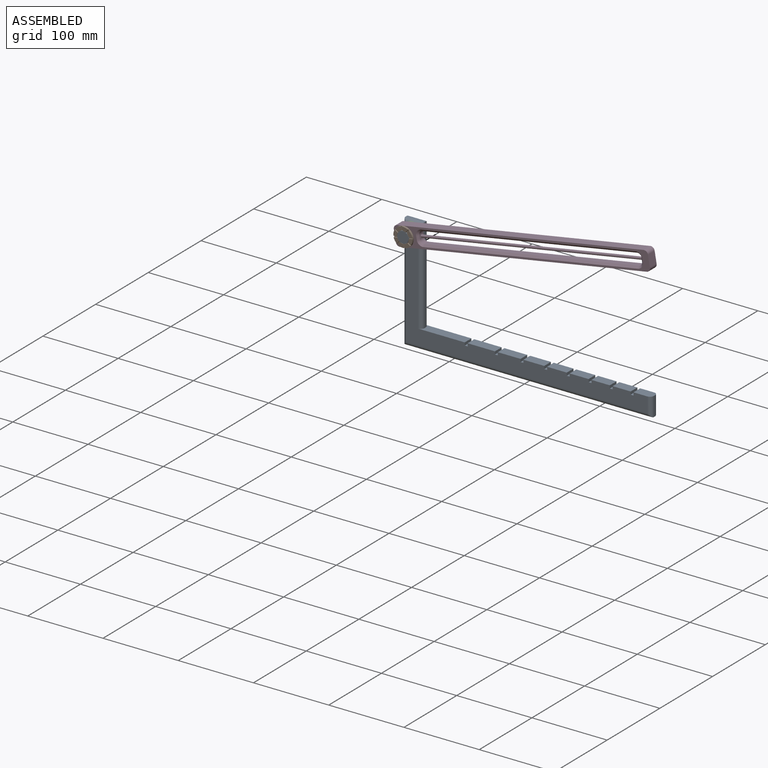
[diagram: assembled view]
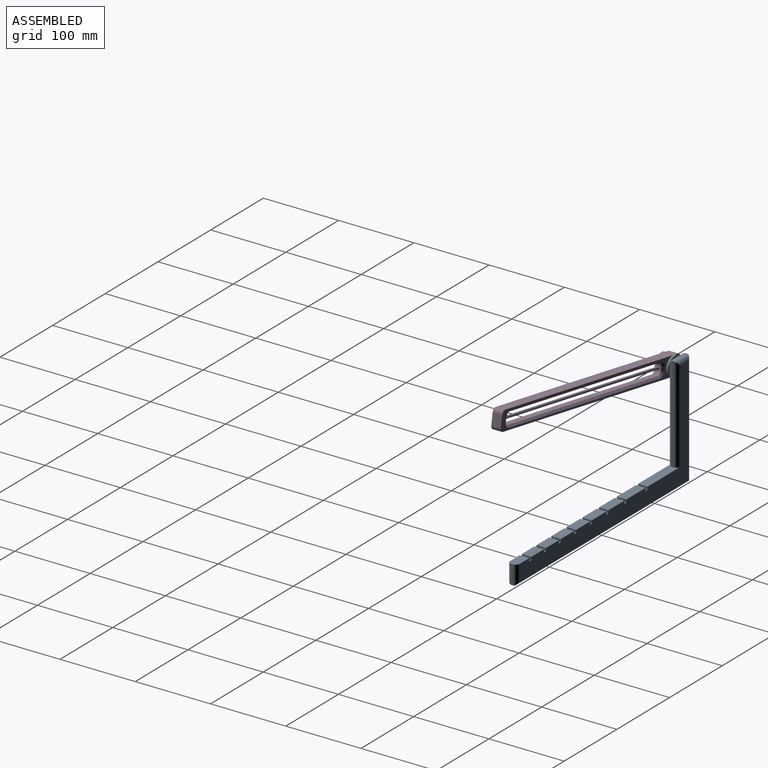
[diagram: assembled view, second angle]
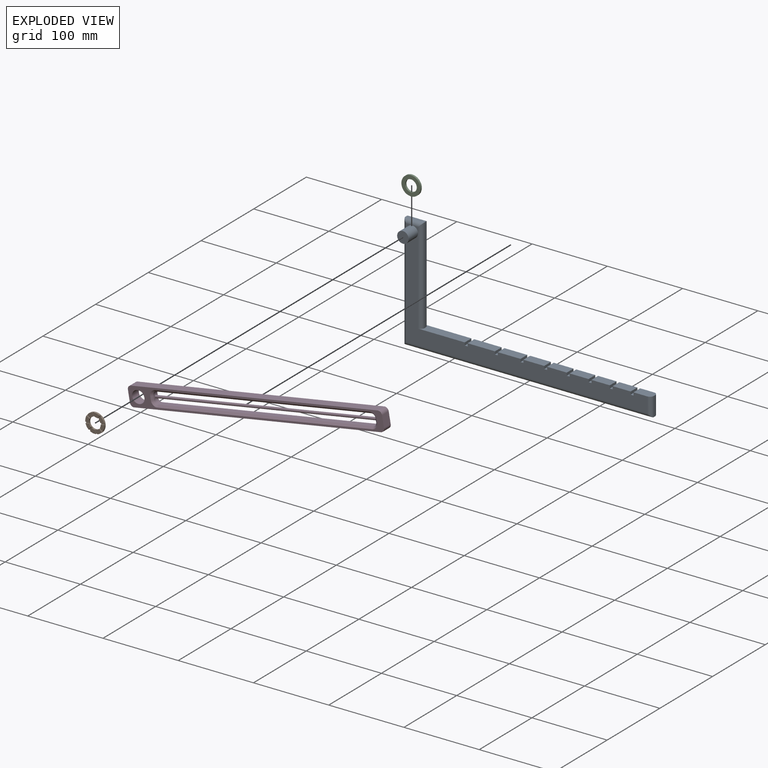
[diagram: exploded view]
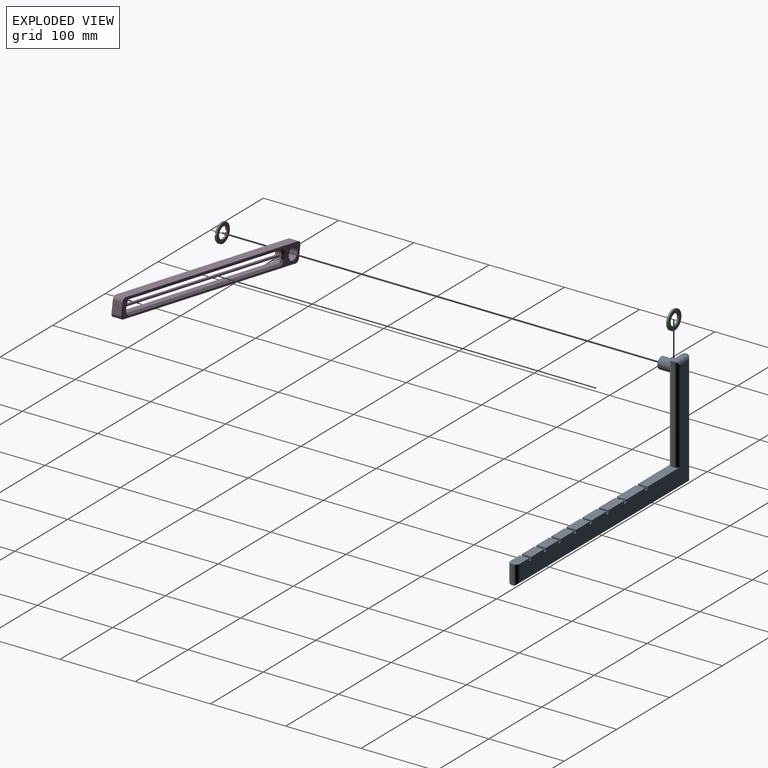
[diagram: exploded view, second angle]
ASSEMBLY  parts=4 mates=3
PART A: 54 faces, bbox 330.2x30.5x152.4 mm
  f0: plane 320.04x134.62mm, normal (0,-1,0), area 8037.8mm2, adj f2,f3,f4,f5,f6,f7,f8,f9
  f1: plane 7.62x7.62mm, normal (0,-1,0), area 12.5mm2, adj f18,f52,f53
  f2: plane 62.1x12.7mm, normal (0,0,1), area 735.3mm2, adj f0,f11,f13,f43,f48,f53
  f3: plane 36.32x12.7mm, normal (0,0,1), area 461.3mm2, adj f0,f11,f39,f42
  f4: plane 30.23x12.7mm, normal (0,0,1), area 383.9mm2, adj f0,f11,f37,f40
  f5: plane 27.69x12.7mm, normal (0,0,1), area 351.6mm2, adj f0,f11,f34,f36
  f6: plane 26.16x12.7mm, normal (0,0,1), area 332.3mm2, adj f0,f11,f31,f33
  f7: plane 25.15x12.7mm, normal (0,0,1), area 319.4mm2, adj f0,f11,f28,f30
  f8: plane 24.38x12.7mm, normal (0,0,1), area 309.7mm2, adj f0,f11,f25,f27
  f9: plane 23.88x12.7mm, normal (0,0,1), area 303.2mm2, adj f0,f11,f22,f24
  f10: plane 7.62x7.62mm, normal (0,-1,0), area 12.5mm2, adj f18,f51,f52
  f11: plane 320.04x142.24mm, normal (0,1,0), area 8245.1mm2, adj f2,f3,f4,f5,f6,f7,f8,f9
  f12: plane 23.5x12.7mm, normal (0,0,1), area 287.3mm2, adj f0,f11,f17,f21,f44,f49
  f13: plane 127x2.54mm, normal (1,0,0), area 322.6mm2, adj f2,f14,f48,f53
  f14: plane 25.4x2.54mm, normal (0,0,1), area 64.5mm2, adj f13,f15,f47,f52
  f15: plane 152.4x2.54mm, normal (-1,0,0), area 387.1mm2, adj f14,f16,f46,f51
  f16: plane 330.2x2.54mm, normal (0,0,-1), area 838.7mm2, adj f15,f17,f45,f50
  f17: plane 25.4x2.54mm, normal (1,0,0), area 64.5mm2, adj f12,f16,f44,f49
  f18: cylinder r=7.62mm len=17.78mm, axis (0,1,0), area 851.3mm2, adj f0,f1,f10,f19
  f19: plane 15.24x15.24mm, normal (0,-1,0), area 182.4mm2, adj f18
  f20: plane 12.7x3.81mm, normal (0,0,1), area 48.4mm2, adj f0,f11,f21,f22
  f21: plane 12.7x3.81mm, normal (-1,0,0), area 48.4mm2, adj f0,f11,f12,f20
  f22: plane 12.7x3.81mm, normal (1,0,0), area 48.4mm2, adj f0,f9,f11,f20
  f23: plane 12.7x3.81mm, normal (0,0,1), area 48.4mm2, adj f0,f11,f24,f25
  f24: plane 12.7x3.81mm, normal (-1,0,0), area 48.4mm2, adj f0,f9,f11,f23
  f25: plane 12.7x3.81mm, normal (1,0,0), area 48.4mm2, adj f0,f8,f11,f23
  f26: plane 12.7x3.81mm, normal (0,0,1), area 48.4mm2, adj f0,f11,f27,f28
  f27: plane 12.7x3.81mm, normal (-1,0,0), area 48.4mm2, adj f0,f8,f11,f26
  f28: plane 12.7x3.81mm, normal (1,0,0), area 48.4mm2, adj f0,f7,f11,f26
  f29: plane 12.7x3.81mm, normal (0,0,1), area 48.4mm2, adj f0,f11,f30,f31
  f30: plane 12.7x3.81mm, normal (-1,0,0), area 48.4mm2, adj f0,f7,f11,f29
  f31: plane 12.7x3.81mm, normal (1,0,0), area 48.4mm2, adj f0,f6,f11,f29
  f32: plane 12.7x3.81mm, normal (0,0,1), area 48.4mm2, adj f0,f11,f33,f34
  f33: plane 12.7x3.81mm, normal (-1,0,0), area 48.4mm2, adj f0,f6,f11,f32
  f34: plane 12.7x3.81mm, normal (1,0,0), area 48.4mm2, adj f0,f5,f11,f32
  f35: plane 12.7x3.81mm, normal (0,0,1), area 48.4mm2, adj f0,f11,f36,f37
  f36: plane 12.7x3.81mm, normal (-1,0,0), area 48.4mm2, adj f0,f5,f11,f35
  f37: plane 12.7x3.81mm, normal (1,0,0), area 48.4mm2, adj f0,f4,f11,f35
  f38: plane 12.7x3.81mm, normal (0,0,1), area 48.4mm2, adj f0,f11,f39,f40
  f39: plane 12.7x3.81mm, normal (1,0,0), area 48.4mm2, adj f0,f3,f11,f38
  f40: plane 12.7x3.81mm, normal (-1,0,0), area 48.4mm2, adj f0,f4,f11,f38
  f41: plane 12.7x3.81mm, normal (0,0,1), area 48.4mm2, adj f0,f11,f42,f43
  f42: plane 12.7x3.81mm, normal (-1,0,0), area 48.4mm2, adj f0,f3,f11,f41
  f43: plane 12.7x3.81mm, normal (1,0,0), area 48.4mm2, adj f0,f2,f11,f41
  f44: cylinder r=5.08mm len=25.4mm, axis (0,0,1), area 188mm2, adj f11,f12,f17,f45
  f45: cylinder r=5.08mm len=330.2mm, axis (1,0,0), area 2605.4mm2, adj f11,f16,f44,f46
  f46: cylinder r=5.08mm len=152.4mm, axis (0,0,-1), area 1186.6mm2, adj f11,f15,f45,f47
  f47: cylinder r=5.08mm len=25.4mm, axis (-1,0,0), area 173.2mm2, adj f11,f14,f46,f48
  f48: cylinder r=5.08mm len=127mm, axis (0,0,1), area 998.7mm2, adj f2,f11,f13,f47
  f49: cylinder r=5.08mm len=25.4mm, axis (0,0,-1), area 188mm2, adj f0,f12,f17,f50
  f50: cylinder r=5.08mm len=330.2mm, axis (-1,0,0), area 2605.4mm2, adj f0,f16,f49,f51
  f51: cylinder r=5.08mm len=152.4mm, axis (0,0,1), area 1186.6mm2, adj f0,f10,f15,f50,f52
  f52: cylinder r=5.08mm len=25.4mm, axis (1,0,0), area 173.2mm2, adj f1,f10,f14,f51,f53
  f53: cylinder r=5.08mm len=127mm, axis (0,0,-1), area 998.7mm2, adj f0,f1,f2,f13,f52
PART B: 35 faces, bbox 25.4x25.4x2.5 mm
  f0: cylinder r=7.75mm len=15.49mm, axis (0,0,-1), area 104.8mm2, adj f2,f3,f4,f5,f6,f7,f8,f9
  f1: cylinder r=12.7mm len=25.4mm, axis (0,0,-1), area 183.9mm2, adj f2,f3,f4,f5,f6,f7,f8,f9
  f2: plane 7.37x6.59mm, normal (0,0,1), area 30.6mm2, adj f0,f1,f12,f25
  f3: plane 7.37x6.59mm, normal (0,0,1), area 30.6mm2, adj f0,f1,f19,f34
  f4: plane 7.37x6.59mm, normal (0,0,1), area 30.6mm2, adj f0,f1,f16,f27
  f5: plane 7.37x6.59mm, normal (0,0,1), area 30.6mm2, adj f0,f1,f15,f30
  f6: plane 7.37x6.59mm, normal (0,0,1), area 30.6mm2, adj f0,f1,f21,f24
  f7: plane 7.37x6.59mm, normal (0,0,1), area 30.6mm2, adj f0,f1,f22,f33
  f8: plane 7.37x6.59mm, normal (0,0,1), area 30.6mm2, adj f0,f1,f13,f28
  f9: plane 7.37x6.59mm, normal (0,0,1), area 30.6mm2, adj f0,f1,f18,f31
  f10: plane 25.4x25.4mm, normal (0,0,-1), area 318.2mm2, adj f0,f1
  f11: plane 4.79x4.79mm, normal (0,0,1), area 8.9mm2, adj f0,f1,f12,f13
  f12: plane 3.52x3.52mm, normal (-0.71,-0.71,0), area 6.3mm2, adj f0,f1,f2,f11
  f13: plane 3.52x3.52mm, normal (0.71,0.71,0), area 6.3mm2, adj f0,f1,f8,f11
  f14: plane 4.79x4.79mm, normal (0,0,1), area 8.9mm2, adj f0,f1,f15,f16
  f15: plane 3.52x3.52mm, normal (0.71,-0.71,0), area 6.3mm2, adj f0,f1,f5,f14
  f16: plane 3.52x3.52mm, normal (-0.71,0.71,0), area 6.3mm2, adj f0,f1,f4,f14
  f17: plane 4.79x4.79mm, normal (0,0,1), area 8.9mm2, adj f0,f1,f18,f19
  f18: plane 3.52x3.52mm, normal (0.71,0.71,0), area 6.3mm2, adj f0,f1,f9,f17
  f19: plane 3.52x3.52mm, normal (-0.71,-0.71,0), area 6.3mm2, adj f0,f1,f3,f17
  f20: plane 4.79x4.79mm, normal (0,0,1), area 8.9mm2, adj f0,f1,f21,f22
  f21: plane 3.52x3.52mm, normal (-0.71,0.71,0), area 6.3mm2, adj f0,f1,f6,f20
  f22: plane 3.52x3.52mm, normal (0.71,-0.71,0), area 6.3mm2, adj f0,f1,f7,f20
  f23: plane 5.01x1.91mm, normal (0,0,1), area 9.5mm2, adj f0,f1,f24,f25
  f24: plane 4.98x1.27mm, normal (0,-1,0), area 6.3mm2, adj f0,f1,f6,f23
  f25: plane 4.98x1.27mm, normal (0,1,0), area 6.3mm2, adj f0,f1,f2,f23
  f26: plane 5.01x1.91mm, normal (0,0,1), area 9.5mm2, adj f0,f1,f27,f28
  f27: plane 4.98x1.27mm, normal (1,0,0), area 6.3mm2, adj f0,f1,f4,f26
  f28: plane 4.98x1.27mm, normal (-1,0,0), area 6.3mm2, adj f0,f1,f8,f26
  f29: plane 5.01x1.91mm, normal (0,0,1), area 9.5mm2, adj f0,f1,f30,f31
  f30: plane 4.98x1.27mm, normal (0,1,0), area 6.3mm2, adj f0,f1,f5,f29
  f31: plane 4.98x1.27mm, normal (0,-1,0), area 6.3mm2, adj f0,f1,f9,f29
  f32: plane 5.01x1.91mm, normal (0,0,1), area 9.5mm2, adj f0,f1,f33,f34
  f33: plane 4.98x1.27mm, normal (-1,0,0), area 6.3mm2, adj f0,f1,f7,f32
  f34: plane 4.98x1.27mm, normal (1,0,0), area 6.3mm2, adj f0,f1,f3,f32
PART C: 4 faces, bbox 25.4x25.4x2.5 mm
  f0: cylinder r=7.75mm len=15.49mm, axis (0,0,-1), area 123.6mm2, adj f2,f3
  f1: cylinder r=12.7mm len=25.4mm, axis (0,0,-1), area 202.7mm2, adj f2,f3
  f2: plane 25.4x25.4mm, normal (0,0,1), area 318.2mm2, adj f0,f1
  f3: plane 25.4x25.4mm, normal (0,0,-1), area 318.2mm2, adj f0,f1
PART D: 36 faces, bbox 342.9x12.7x25.4 mm
  f0: plane 342.9x25.4mm, normal (0,-1,0), area 2329.7mm2, adj f2,f3,f4,f5,f6,f11,f12,f13
  f1: plane 342.9x25.4mm, normal (0,1,0), area 2329.7mm2, adj f2,f3,f4,f5,f6,f11,f12,f13
  f2: plane 15.24x12.7mm, normal (1,0,0), area 193.5mm2, adj f0,f1,f11,f14
  f3: plane 332.74x12.7mm, normal (0,0,1), area 4225.8mm2, adj f0,f1,f11,f12
  f4: plane 15.24x12.7mm, normal (-1,0,0), area 193.5mm2, adj f0,f1,f12,f13
  f5: plane 332.74x12.7mm, normal (0,0,-1), area 4225.8mm2, adj f0,f1,f13,f14
  f6: cylinder r=8.26mm len=16.51mm, axis (0,-1,0), area 658.7mm2, adj f0,f1
  f7: plane 289.56x7.62mm, normal (0,0,1), area 2206.4mm2, adj f16,f17,f23,f31
  f8: plane 7.62x5.08mm, normal (-1,0,0), area 28.8mm2, adj f17,f18,f26,f34,f35
  f9: plane 289.56x7.62mm, normal (0,0,-1), area 2206.4mm2, adj f15,f18,f22,f30
  f10: plane 7.62x5.08mm, normal (1,0,0), area 28.8mm2, adj f15,f16,f19,f27,f35
  f11: cylinder r=5.08mm len=12.7mm, axis (0,1,0), area 101.3mm2, adj f0,f1,f2,f3
  f12: cylinder r=5.08mm len=12.7mm, axis (0,-1,0), area 101.3mm2, adj f0,f1,f3,f4
  f13: cylinder r=5.08mm len=12.7mm, axis (0,1,0), area 101.3mm2, adj f0,f1,f4,f5
  f14: cylinder r=5.08mm len=12.7mm, axis (0,-1,0), area 101.3mm2, adj f0,f1,f2,f5
  f15: cylinder r=5.08mm len=7.62mm, axis (0,-1,0), area 60.8mm2, adj f9,f10,f20,f28
  f16: cylinder r=5.08mm len=7.62mm, axis (0,1,0), area 60.8mm2, adj f7,f10,f21,f29
  f17: cylinder r=5.08mm len=7.62mm, axis (0,1,0), area 60.8mm2, adj f7,f8,f25,f33
  f18: cylinder r=5.08mm len=7.62mm, axis (0,-1,0), area 60.8mm2, adj f8,f9,f24,f32
  f19: plane 5.08x2.54mm, normal (0.71,0.71,0), area 18.2mm2, adj f1,f10,f20,f21
  f20: cone r=7.62mm half-angle=45deg, axis (0,1,0), area 35.8mm2, adj f1,f15,f19,f22
  f21: cone r=7.62mm half-angle=45deg, axis (0,1,0), area 35.8mm2, adj f1,f16,f19,f23
  f22: plane 289.56x2.54mm, normal (0,0.71,-0.71), area 1040.1mm2, adj f1,f9,f20,f24
  f23: plane 289.56x2.54mm, normal (0,0.71,0.71), area 1040.1mm2, adj f1,f7,f21,f25
  f24: cone r=7.62mm half-angle=45deg, axis (0,1,0), area 35.8mm2, adj f1,f18,f22,f26
  f25: cone r=7.62mm half-angle=45deg, axis (0,1,0), area 35.8mm2, adj f1,f17,f23,f26
  f26: plane 5.08x2.54mm, normal (-0.71,0.71,0), area 18.2mm2, adj f1,f8,f24,f25
  f27: plane 5.08x2.54mm, normal (0.71,-0.71,0), area 18.2mm2, adj f0,f10,f28,f29
  f28: cone r=7.62mm half-angle=45deg, axis (0,-1,0), area 35.8mm2, adj f0,f15,f27,f30
  f29: cone r=7.62mm half-angle=45deg, axis (0,-1,0), area 35.8mm2, adj f0,f16,f27,f31
  f30: plane 289.56x2.54mm, normal (0,-0.71,-0.71), area 1040.1mm2, adj f0,f9,f28,f32
  f31: plane 289.56x2.54mm, normal (0,-0.71,0.71), area 1040.1mm2, adj f0,f7,f29,f33
  f32: cone r=7.62mm half-angle=45deg, axis (0,-1,0), area 35.8mm2, adj f0,f18,f30,f34
  f33: cone r=7.62mm half-angle=45deg, axis (0,-1,0), area 35.8mm2, adj f0,f17,f31,f34
  f34: plane 5.08x2.54mm, normal (-0.71,-0.71,0), area 18.2mm2, adj f0,f8,f32,f33
  f35: cylinder r=1.78mm len=299.72mm, axis (1,0,0), area 3348.3mm2, adj f8,f10
PLACE A t=(-158.29,-92.38,42.2)mm
PLACE B rot(axis=(0.99,-0.09,0.09),90.4deg) t=(-145.59,-120.32,156.5)mm
PLACE C rot(axis=(1,0,0),90deg) t=(-145.59,-105.08,156.5)mm
PLACE D rot(axis=(0,-1,0),10deg) t=(10.75,-107.62,184.07)mm
MATE fastened C.f0 <-> A.f18  axis (0,1,0) through (-145.59,-105.08,156.5)mm
MATE fastened B.f0 <-> D.f6  axis (0,1,0) through (-145.59,-120.32,156.5)mm
MATE revolute D.f6 <-> C.f0  axis (0,1,0) through (-145.59,-107.62,156.5)mm
